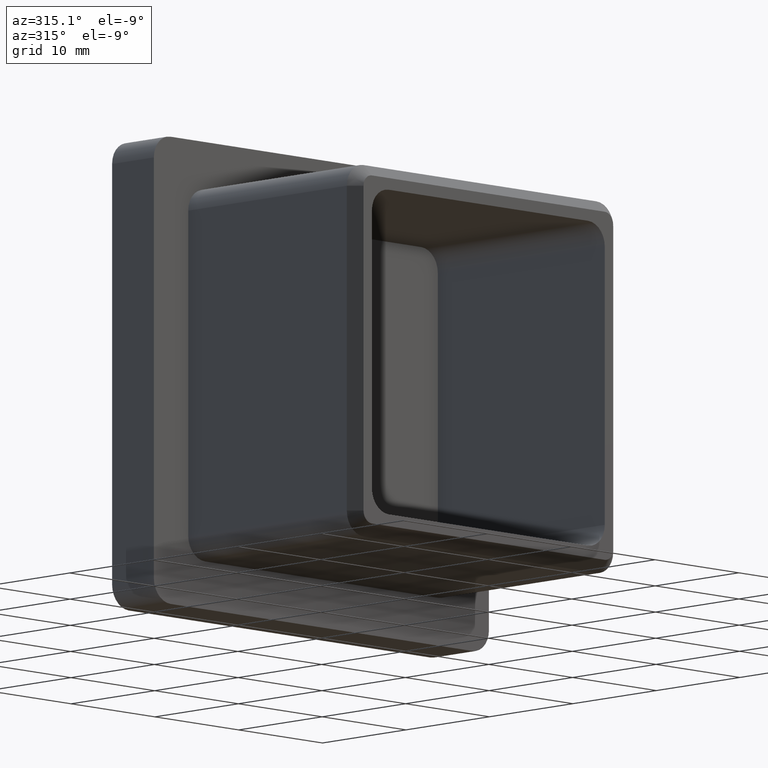
[diagram: clean part render]
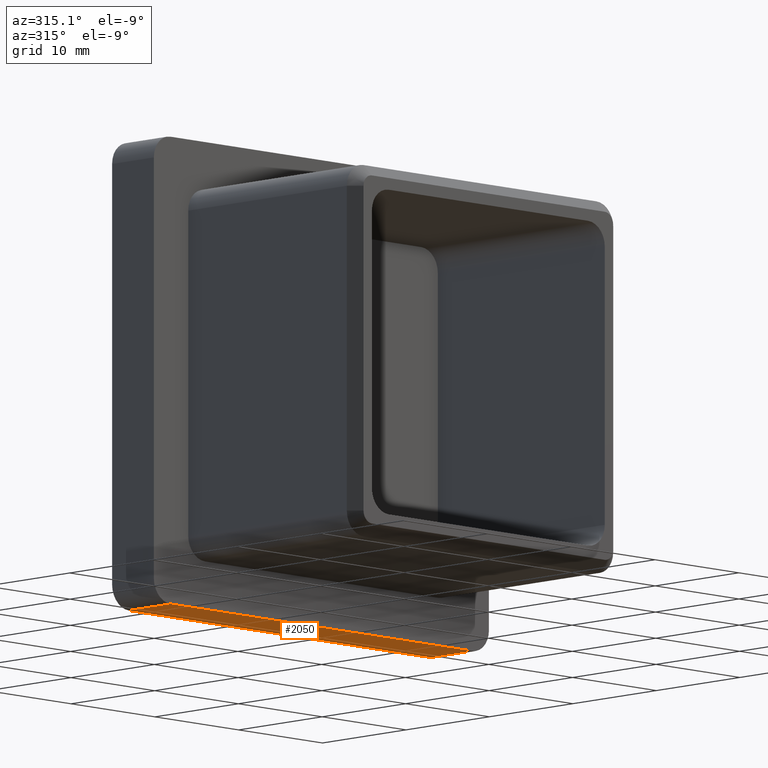
[diagram: same view with one face highlighted and labeled with its STEP entity id]
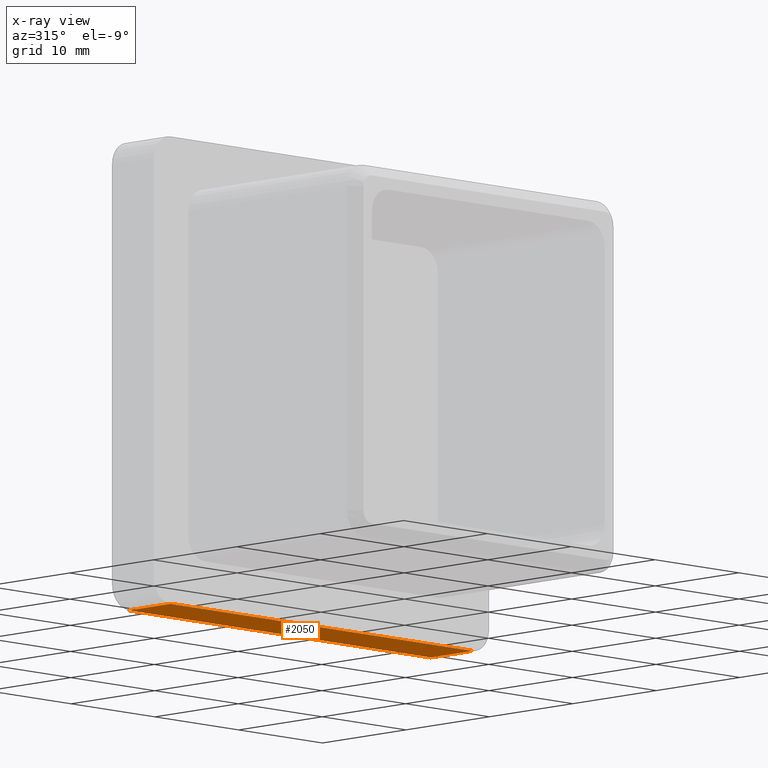
[diagram: x-ray of the same camera — body ghosted, the highlighted face saturated]
A machine part, auxiliary view. The second image highlights one B-rep face of the part: STEP entity #2050.
The next image is the same camera in x-ray: the body ghosted, the highlighted face saturated — about 0% of this face is hidden behind the body in this view.
In plain terms, the highlighted planar face has unit normal (0, 0, 1).
Its self-contained STEP definition (entity closure, byte-faithful):
#30 = PLANE ( 'NONE',  #11332 ) ;
#122 = EDGE_CURVE ( 'NONE', #4263, #4934, #4925, .T. ) ;
#303 = ORIENTED_EDGE ( 'NONE', *, *, #122, .T. ) ;
#465 = DIRECTION ( 'NONE',  ( -1.000000000000000000, -0.0000000000000000000, -0.0000000000000000000 ) ) ;
#593 = ORIENTED_EDGE ( 'NONE', *, *, #15002, .T. ) ;
#788 = DIRECTION ( 'NONE',  ( -1.000000000000000000, -0.0000000000000000000, -0.0000000000000000000 ) ) ;
#2050 = ADVANCED_FACE ( 'NONE', ( #7459 ), #30, .F. ) ;
#3116 = VECTOR ( 'NONE', #788, 1000.000000000000000 ) ;
#3131 = VERTEX_POINT ( 'NONE', #3463 ) ;
#3463 = CARTESIAN_POINT ( 'NONE',  ( -18.00000000000000400, 5.000000000000000000, -20.00000000000000000 ) ) ;
#3571 = DIRECTION ( 'NONE',  ( 0.0000000000000000000, -1.000000000000000000, 0.0000000000000000000 ) ) ;
#3576 = CARTESIAN_POINT ( 'NONE',  ( -20.00000000000000000, 5.000000000000000000, -20.00000000000000000 ) ) ;
#3929 = CARTESIAN_POINT ( 'NONE',  ( -20.00000000000000000, 5.000000000000000000, -20.00000000000000000 ) ) ;
#4078 = CARTESIAN_POINT ( 'NONE',  ( -18.00000000000000400, 5.000000000000000000, -20.00000000000000000 ) ) ;
#4168 = ORIENTED_EDGE ( 'NONE', *, *, #4495, .T. ) ;
#4263 = VERTEX_POINT ( 'NONE', #7502 ) ;
#4495 = EDGE_CURVE ( 'NONE', #13367, #4263, #5420, .T. ) ;
#4587 = CARTESIAN_POINT ( 'NONE',  ( 18.00000000000000700, 5.000000000000000000, -20.00000000000000000 ) ) ;
#4699 = EDGE_CURVE ( 'NONE', #13367, #3131, #10332, .T. ) ;
#4925 = LINE ( 'NONE', #5295, #3116 ) ;
#4934 = VERTEX_POINT ( 'NONE', #10568 ) ;
#5295 = CARTESIAN_POINT ( 'NONE',  ( -20.00000000000000000, 0.0000000000000000000, -20.00000000000000000 ) ) ;
#5420 = LINE ( 'NONE', #9058, #11948 ) ;
#6015 = EDGE_LOOP ( 'NONE', ( #10435, #4168, #303, #593 ) ) ;
#6485 = DIRECTION ( 'NONE',  ( -0.0000000000000000000, 1.000000000000000000, -0.0000000000000000000 ) ) ;
#7459 = FACE_OUTER_BOUND ( 'NONE', #6015, .T. ) ;
#7502 = CARTESIAN_POINT ( 'NONE',  ( 18.00000000000000700, 0.0000000000000000000, -20.00000000000000000 ) ) ;
#9058 = CARTESIAN_POINT ( 'NONE',  ( 18.00000000000000700, 5.000000000000000000, -20.00000000000000000 ) ) ;
#9247 = VECTOR ( 'NONE', #465, 1000.000000000000000 ) ;
#9314 = DIRECTION ( 'NONE',  ( 0.0000000000000000000, 0.0000000000000000000, 1.000000000000000000 ) ) ;
#10332 = LINE ( 'NONE', #3929, #9247 ) ;
#10435 = ORIENTED_EDGE ( 'NONE', *, *, #4699, .F. ) ;
#10568 = CARTESIAN_POINT ( 'NONE',  ( -18.00000000000000400, 0.0000000000000000000, -20.00000000000000000 ) ) ;
#11271 = LINE ( 'NONE', #4078, #12908 ) ;
#11332 = AXIS2_PLACEMENT_3D ( 'NONE', #3576, #9314, #11677 ) ;
#11677 = DIRECTION ( 'NONE',  ( 1.000000000000000000, 0.0000000000000000000, -0.0000000000000000000 ) ) ;
#11948 = VECTOR ( 'NONE', #3571, 1000.000000000000000 ) ;
#12908 = VECTOR ( 'NONE', #6485, 1000.000000000000000 ) ;
#13367 = VERTEX_POINT ( 'NONE', #4587 ) ;
#15002 = EDGE_CURVE ( 'NONE', #4934, #3131, #11271, .T. ) ;